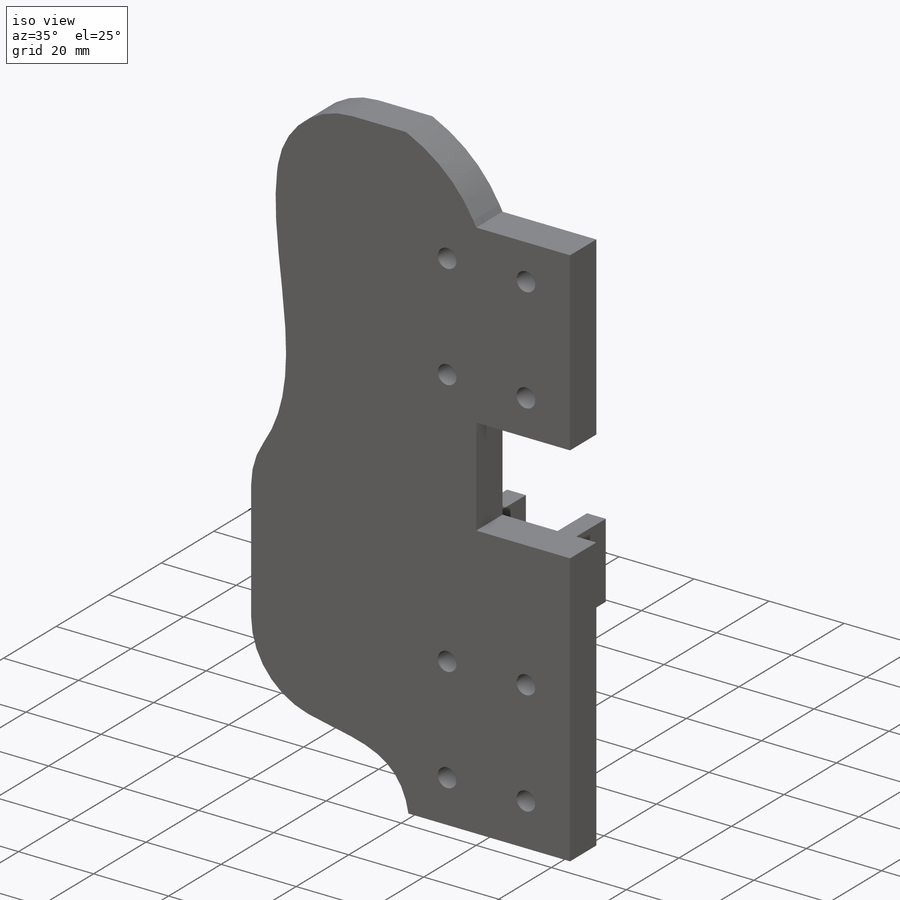
[diagram: iso view]
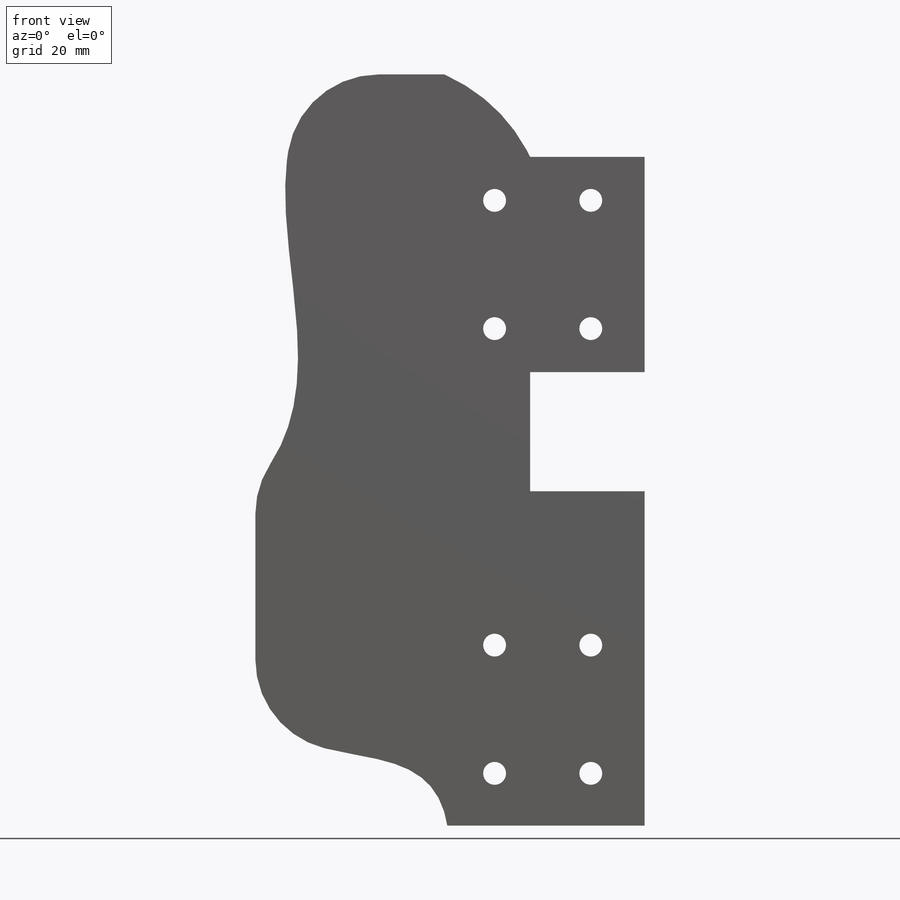
[diagram: front view]
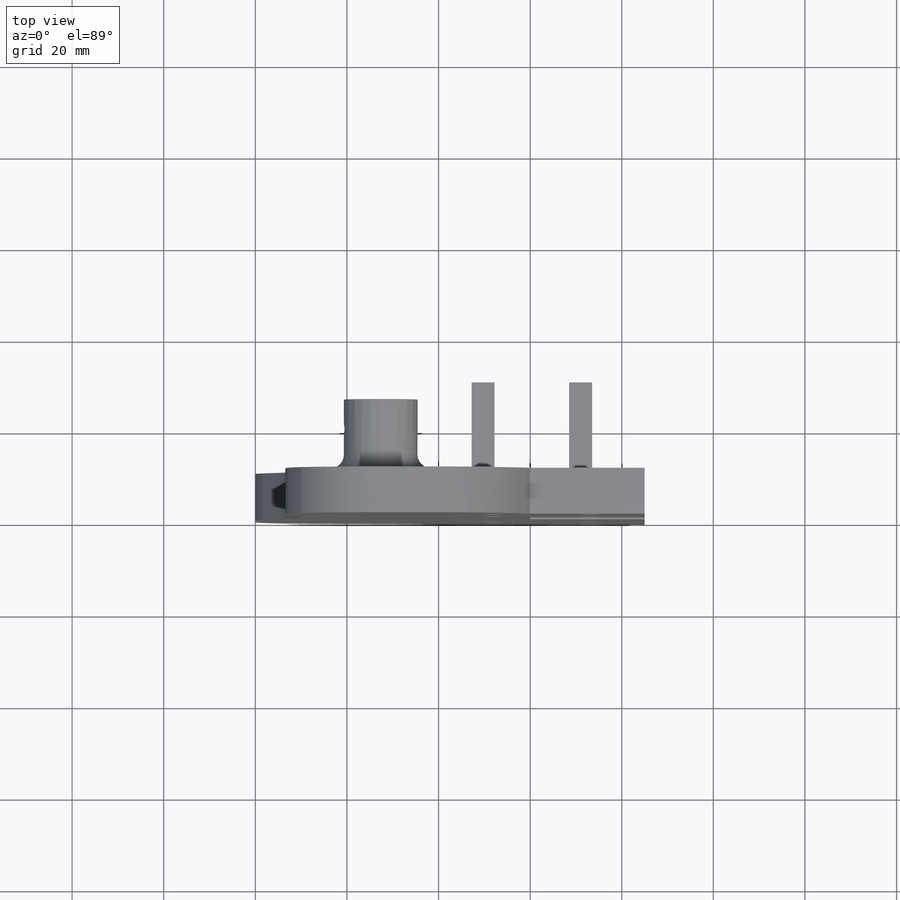
[diagram: top view]
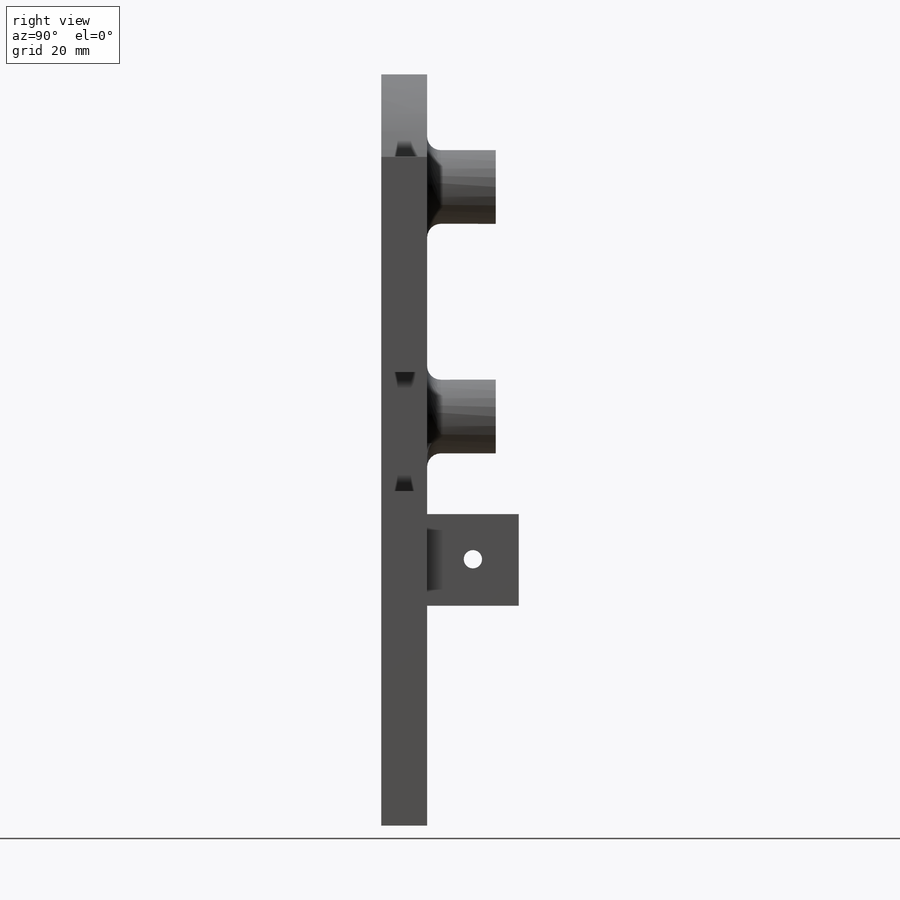
[diagram: right view]
SOLIDWORKS PART (.sldprt)
format: sldprt  version: not decoded by parser v0  size: 456,192 bytes
history: native  units: mm
features: sketch x7, plane x5, cut_extrude x3, extrude x3, chamfer x2, mirror x2, material x1 (+14 scaffold rows collapsed; 3 parser-record rows omitted)
feature tree (40):
  scaffold x14  (default folders/planes/origin — collapsed)
  material  "Material <not specified>"
  plane  "Plan de face"
  plane  "Plan de dessus"
  plane  "Plan de droite"
  parser-record x3  (decoder bookkeeping rows leaked as tree rows — omitted from the tree; the rows remain in map.json)
  sketch  "Sketch1"
  cut_extrude  "Cut-Extrude1"  Depth=30mm
  sketch  "Sketch3"
  extrude  "Boss-Extrude1"  Depth=25mm
  sketch  "Sketch4"  dims[c1.D1=5.0mm c1.D2=5.0mm c1.D3=20.0mm c1.D4=20.0mm c1.D5=5.0mm c1.D6=14.0mm c1.D7=1.0mm c1.D8=14.8mm c1.D9=1.0mm c2.D7=1.0mm c2.D10=5.0mm]
  extrude  "Boss-Extrude2"  Depth=20mm
  sketch  "Sketch5"  dims[D1=4.0mm]
  cut_extrude  "Cut-Extrude2"  [1 undecoded]
  sketch  "Sketch6"
  cut_extrude  "Cut-Extrude3"  [1 undecoded]
  sketch  "Sketch7"  dims[D1=16.5mm]
  extrude  "Boss-Extrude3"  Depth=3mm
  chamfer  "Chamfer1"  Distance=3mm Angle=45deg
  sketch  "Sketch8"  dims[D1=3.0mm]
  plane  "Plane1"
  mirror  "Mirror1"
  plane  "Plane2"
  mirror  "Mirror2"
  chamfer  "Chamfer2"  Distance=10mm Angle=45deg
decode coverage: 10 of 17 modeling features carry decoded parameters
note: 2 parameter values undecoded
note: suppression state not decoded; provenance and decode notes live in map.json
